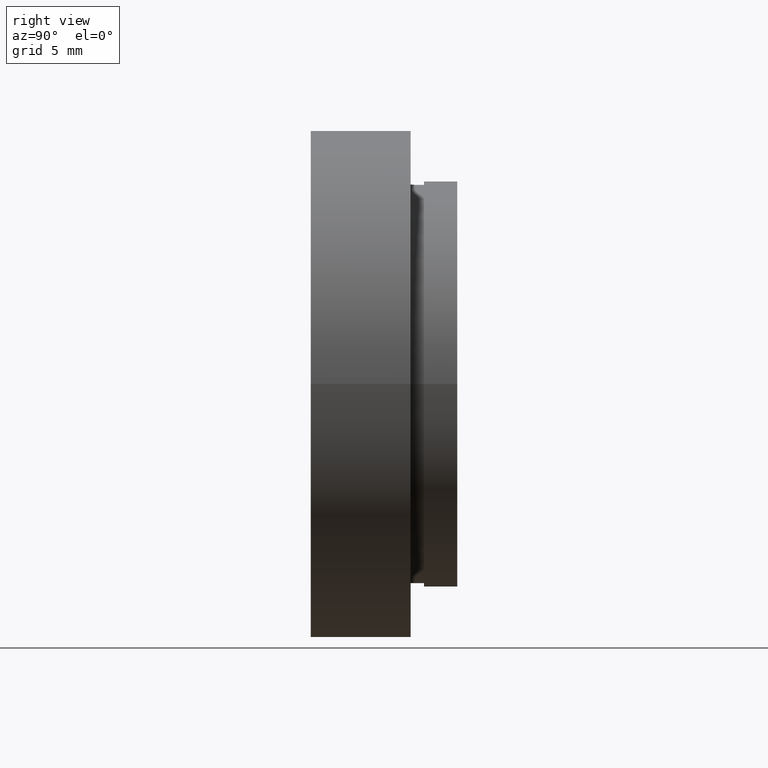
[diagram: clean part render]
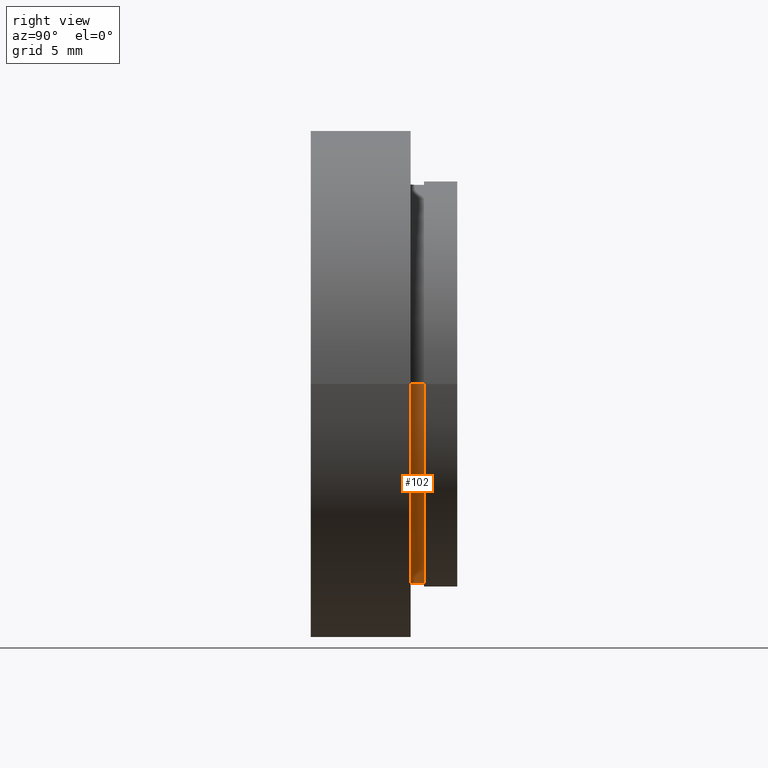
[diagram: same view with one face highlighted and labeled with its STEP entity id]
A machine part, right view. The second image highlights one B-rep face of the part: STEP entity #102.
In plain terms, the highlighted cylindrical surface (partial cylindrical patch) has radius 15 mm, axis along (-0, 1, -0).
Its self-contained STEP definition (entity closure, byte-faithful):
#1 = EDGE_CURVE ( 'NONE', #369, #468, #57, .T. ) ;
#9 = CARTESIAN_POINT ( 'NONE',  ( 15.00000000000000000, 16.88601823708208000, 1.836970198721029600E-015 ) ) ;
#12 = DIRECTION ( 'NONE',  ( -1.224646799147351000E-016, 1.000000000000000000, -0.0000000000000000000 ) ) ;
#17 = EDGE_CURVE ( 'NONE', #467, #468, #535, .T. ) ;
#30 = CARTESIAN_POINT ( 'NONE',  ( 1.026991039163387900E-015, 8.499999999999996400, 0.0000000000000000000 ) ) ;
#34 = DIRECTION ( 'NONE',  ( -1.224646799147351000E-016, 1.000000000000000000, -0.0000000000000000000 ) ) ;
#57 = CIRCLE ( 'NONE', #426, 15.00000000000000000 ) ;
#87 = ORIENTED_EDGE ( 'NONE', *, *, #17, .T. ) ;
#94 = EDGE_CURVE ( 'NONE', #403, #369, #127, .T. ) ;
#102 = ADVANCED_FACE ( 'NONE', ( #316 ), #542, .T. ) ;
#103 = AXIS2_PLACEMENT_3D ( 'NONE', #212, #299, #387 ) ;
#105 = CARTESIAN_POINT ( 'NONE',  ( 0.0000000000000000000, 16.88601823708207700, 0.0000000000000000000 ) ) ;
#127 = LINE ( 'NONE', #9, #186 ) ;
#143 = CARTESIAN_POINT ( 'NONE',  ( 15.00000000000000200, 7.500000000000000000, 1.836970198721029600E-015 ) ) ;
#146 = DIRECTION ( 'NONE',  ( -1.224646799147351000E-016, 1.000000000000000000, -0.0000000000000000000 ) ) ;
#164 = VECTOR ( 'NONE', #34, 1000.000000000000000 ) ;
#173 = AXIS2_PLACEMENT_3D ( 'NONE', #105, #146, #515 ) ;
#186 = VECTOR ( 'NONE', #12, 1000.000000000000000 ) ;
#187 = ORIENTED_EDGE ( 'NONE', *, *, #1, .F. ) ;
#206 = ORIENTED_EDGE ( 'NONE', *, *, #94, .F. ) ;
#212 = CARTESIAN_POINT ( 'NONE',  ( 1.149455719078122700E-015, 7.499999999999998200, 0.0000000000000000000 ) ) ;
#272 = CIRCLE ( 'NONE', #103, 15.00000000000000000 ) ;
#299 = DIRECTION ( 'NONE',  ( -1.224646799147351000E-016, 1.000000000000000000, -0.0000000000000000000 ) ) ;
#300 = EDGE_LOOP ( 'NONE', ( #206, #523, #87, #187 ) ) ;
#316 = FACE_OUTER_BOUND ( 'NONE', #300, .T. ) ;
#337 = CARTESIAN_POINT ( 'NONE',  ( -14.99999999999999800, 8.499999999999994700, 0.0000000000000000000 ) ) ;
#351 = DIRECTION ( 'NONE',  ( -1.224646799147351000E-016, 1.000000000000000000, -0.0000000000000000000 ) ) ;
#353 = CARTESIAN_POINT ( 'NONE',  ( -15.00000000000000000, 16.88601823708207300, 0.0000000000000000000 ) ) ;
#369 = VERTEX_POINT ( 'NONE', #416 ) ;
#387 = DIRECTION ( 'NONE',  ( -1.000000000000000000, -1.156482317317871500E-016, 0.0000000000000000000 ) ) ;
#399 = DIRECTION ( 'NONE',  ( -1.000000000000000000, -1.156482317317871500E-016, 0.0000000000000000000 ) ) ;
#403 = VERTEX_POINT ( 'NONE', #143 ) ;
#416 = CARTESIAN_POINT ( 'NONE',  ( 15.00000000000000200, 8.499999999999998200, 1.836970198721029600E-015 ) ) ;
#426 = AXIS2_PLACEMENT_3D ( 'NONE', #30, #351, #399 ) ;
#467 = VERTEX_POINT ( 'NONE', #469 ) ;
#468 = VERTEX_POINT ( 'NONE', #337 ) ;
#469 = CARTESIAN_POINT ( 'NONE',  ( -14.99999999999999800, 7.499999999999996400, 0.0000000000000000000 ) ) ;
#515 = DIRECTION ( 'NONE',  ( -1.000000000000000000, -2.312964634635743000E-016, 0.0000000000000000000 ) ) ;
#523 = ORIENTED_EDGE ( 'NONE', *, *, #546, .T. ) ;
#535 = LINE ( 'NONE', #353, #164 ) ;
#542 = CYLINDRICAL_SURFACE ( 'NONE', #173, 15.00000000000000000 ) ;
#546 = EDGE_CURVE ( 'NONE', #403, #467, #272, .T. ) ;